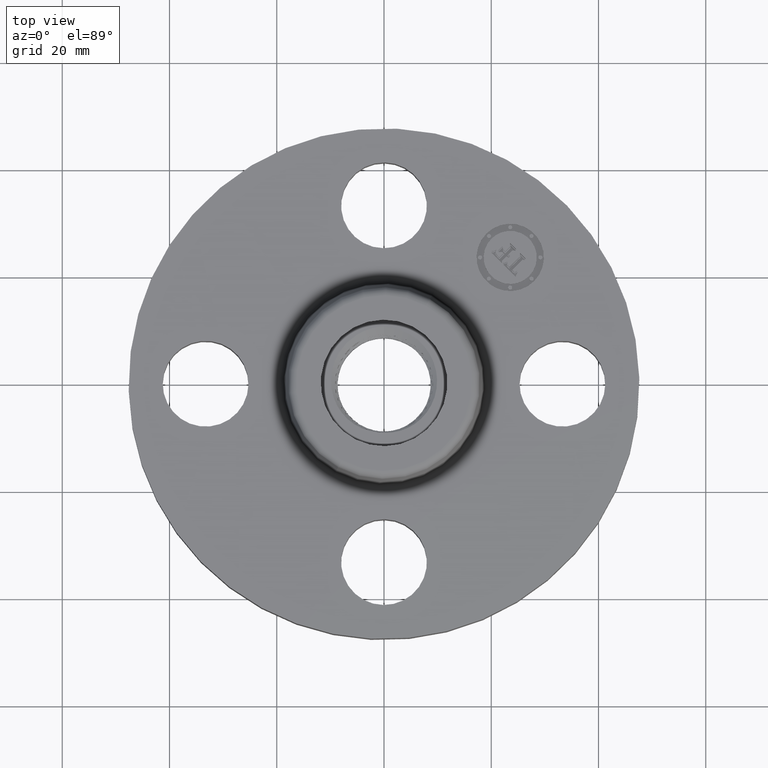
[diagram: clean part render]
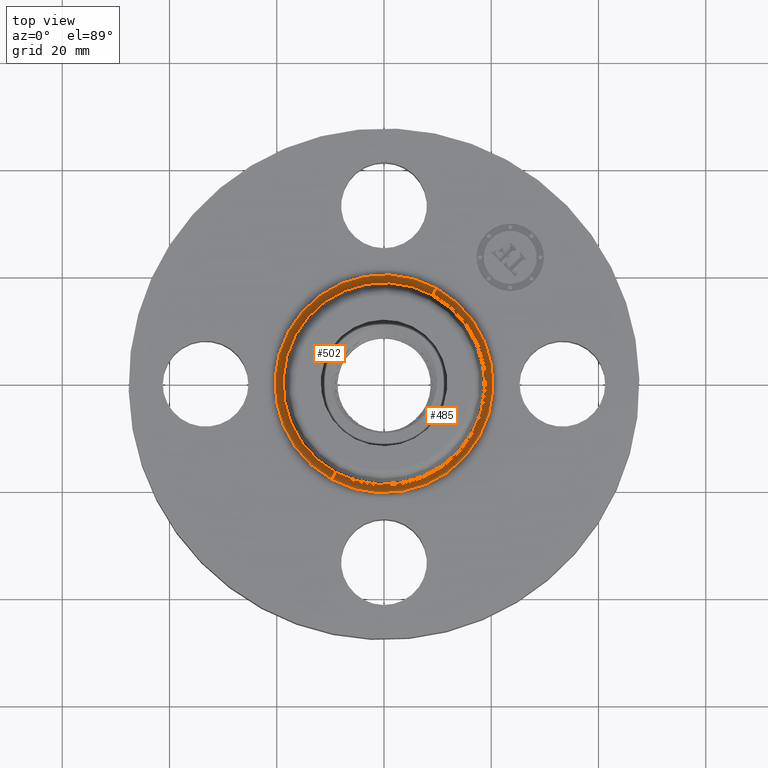
[diagram: same view with one multi-face feature highlighted, each face labeled with its STEP entity id]
A machine part, top view. The highlighted faces form ONE feature: a constant-radius fillet chain: 2 tangent blend faces with common blend radius 1.524 mm. The faces share edges in the B-rep.
Their STEP definitions:
[1] entity #502 (Torus):
#449=AXIS2_PLACEMENT_3D('Torus Axis2P3D',#446,#447,#448) ;
#462=AXIS2_PLACEMENT_3D('Circle Axis2P3D',#460,#461,$) ;
#476=AXIS2_PLACEMENT_3D('Circle Axis2P3D',#474,#475,$) ;
#488=AXIS2_PLACEMENT_3D('Circle Axis2P3D',#486,#487,$) ;
#493=AXIS2_PLACEMENT_3D('Circle Axis2P3D',#491,#492,$) ;
#446=CARTESIAN_POINT('Axis2P3D Location',(0.,0.,0.560000000002)) ;
#455=CARTESIAN_POINT('Vertex',(0.383706301512,0.702369673661,0.500000000002)) ;
#457=CARTESIAN_POINT('Vertex',(-0.383706301512,-0.702369673661,0.500000000002)) ;
#460=CARTESIAN_POINT('Axis2P3D Location',(0.383706301512,0.702369673661,0.560000000002)) ;
#464=CARTESIAN_POINT('Vertex',(0.355377782267,0.650514667009,0.549581109342)) ;
#471=CARTESIAN_POINT('Vertex',(-0.355377782267,-0.650514667009,0.549581109342)) ;
#474=CARTESIAN_POINT('Axis2P3D Location',(-0.383706301512,-0.702369673661,0.560000000002)) ;
#486=CARTESIAN_POINT('Axis2P3D Location',(0.,0.,0.500000000002)) ;
#491=CARTESIAN_POINT('Axis2P3D Location',(0.,0.,0.549581109342)) ;
#447=DIRECTION('Axis2P3D Direction',(0.,0.,-0.0393700787402)) ;
#448=DIRECTION('Axis2P3D XDirection',(-0.0188750212049,-0.0345504945626,0.)) ;
#461=DIRECTION('Axis2P3D Direction',(-0.0345504945626,0.0188750212049,0.)) ;
#475=DIRECTION('Axis2P3D Direction',(0.0345504945626,-0.0188750212049,0.)) ;
#487=DIRECTION('Axis2P3D Direction',(0.,0.,-0.0393700787402)) ;
#492=DIRECTION('Axis2P3D Direction',(0.,0.,-0.0393700787402)) ;
#497=ORIENTED_EDGE('',*,*,#490,.F.) ;
#498=ORIENTED_EDGE('',*,*,#478,.T.) ;
#499=ORIENTED_EDGE('',*,*,#495,.T.) ;
#500=ORIENTED_EDGE('',*,*,#466,.F.) ;
#502=ADVANCED_FACE('PartBody',(#501),#450,.F.) ;
#463=CIRCLE('generated circle',#462,0.0600000000002) ;
#477=CIRCLE('generated circle',#476,0.0600000000002) ;
#489=CIRCLE('generated circle',#488,0.800345977874) ;
#494=CIRCLE('generated circle',#493,0.741257512693) ;
#450=TOROIDAL_SURFACE('homeo Torus',#449,0.800345977874,0.0600000000002) ;
#466=EDGE_CURVE('',#456,#465,#463,.T.) ;
#478=EDGE_CURVE('',#458,#472,#477,.T.) ;
#490=EDGE_CURVE('',#458,#456,#489,.T.) ;
#495=EDGE_CURVE('',#472,#465,#494,.T.) ;
#496=EDGE_LOOP('',(#497,#498,#499,#500)) ;
#501=FACE_OUTER_BOUND('',#496,.T.) ;
#456=VERTEX_POINT('',#455) ;
#458=VERTEX_POINT('',#457) ;
#465=VERTEX_POINT('',#464) ;
#472=VERTEX_POINT('',#471) ;
[2] entity #485 (Torus):
#449=AXIS2_PLACEMENT_3D('Torus Axis2P3D',#446,#447,#448) ;
#453=AXIS2_PLACEMENT_3D('Circle Axis2P3D',#451,#452,$) ;
#462=AXIS2_PLACEMENT_3D('Circle Axis2P3D',#460,#461,$) ;
#469=AXIS2_PLACEMENT_3D('Circle Axis2P3D',#467,#468,$) ;
#476=AXIS2_PLACEMENT_3D('Circle Axis2P3D',#474,#475,$) ;
#446=CARTESIAN_POINT('Axis2P3D Location',(0.,0.,0.560000000002)) ;
#451=CARTESIAN_POINT('Axis2P3D Location',(0.,0.,0.500000000002)) ;
#455=CARTESIAN_POINT('Vertex',(0.383706301512,0.702369673661,0.500000000002)) ;
#457=CARTESIAN_POINT('Vertex',(-0.383706301512,-0.702369673661,0.500000000002)) ;
#460=CARTESIAN_POINT('Axis2P3D Location',(0.383706301512,0.702369673661,0.560000000002)) ;
#464=CARTESIAN_POINT('Vertex',(0.355377782267,0.650514667009,0.549581109342)) ;
#467=CARTESIAN_POINT('Axis2P3D Location',(0.,0.,0.549581109342)) ;
#471=CARTESIAN_POINT('Vertex',(-0.355377782267,-0.650514667009,0.549581109342)) ;
#474=CARTESIAN_POINT('Axis2P3D Location',(-0.383706301512,-0.702369673661,0.560000000002)) ;
#447=DIRECTION('Axis2P3D Direction',(0.,0.,-0.0393700787402)) ;
#448=DIRECTION('Axis2P3D XDirection',(-0.0188750212049,-0.0345504945626,0.)) ;
#452=DIRECTION('Axis2P3D Direction',(0.,0.,-0.0393700787402)) ;
#461=DIRECTION('Axis2P3D Direction',(-0.0345504945626,0.0188750212049,0.)) ;
#468=DIRECTION('Axis2P3D Direction',(0.,0.,-0.0393700787402)) ;
#475=DIRECTION('Axis2P3D Direction',(0.0345504945626,-0.0188750212049,0.)) ;
#480=ORIENTED_EDGE('',*,*,#459,.F.) ;
#481=ORIENTED_EDGE('',*,*,#466,.T.) ;
#482=ORIENTED_EDGE('',*,*,#473,.T.) ;
#483=ORIENTED_EDGE('',*,*,#478,.F.) ;
#485=ADVANCED_FACE('PartBody',(#484),#450,.F.) ;
#454=CIRCLE('generated circle',#453,0.800345977874) ;
#463=CIRCLE('generated circle',#462,0.0600000000002) ;
#470=CIRCLE('generated circle',#469,0.741257512693) ;
#477=CIRCLE('generated circle',#476,0.0600000000002) ;
#450=TOROIDAL_SURFACE('homeo Torus',#449,0.800345977874,0.0600000000002) ;
#459=EDGE_CURVE('',#456,#458,#454,.T.) ;
#466=EDGE_CURVE('',#456,#465,#463,.T.) ;
#473=EDGE_CURVE('',#465,#472,#470,.T.) ;
#478=EDGE_CURVE('',#458,#472,#477,.T.) ;
#479=EDGE_LOOP('',(#480,#481,#482,#483)) ;
#484=FACE_OUTER_BOUND('',#479,.T.) ;
#456=VERTEX_POINT('',#455) ;
#458=VERTEX_POINT('',#457) ;
#465=VERTEX_POINT('',#464) ;
#472=VERTEX_POINT('',#471) ;